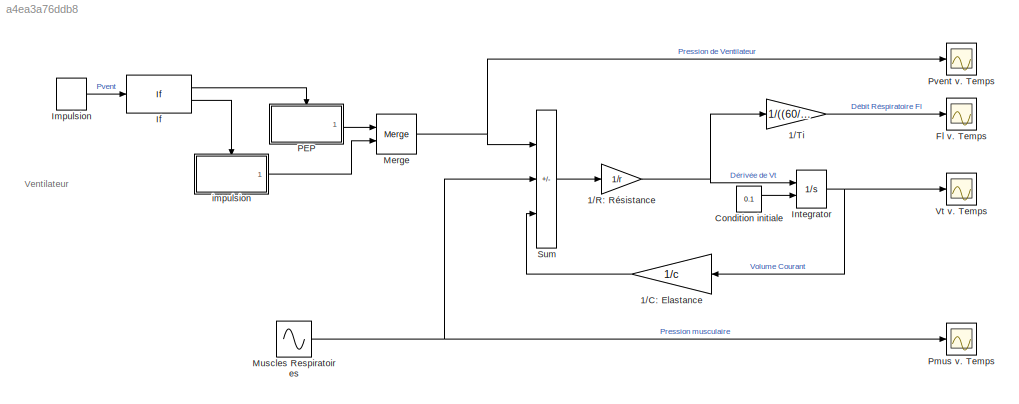
MODEL slx_a4ea3a76ddb8
KIND model
CONFIG AbsTol = auto
CONFIG EnableMultiTasking = off
CONFIG FixedStep = auto
CONFIG MaxStep = auto
CONFIG MinStep = auto
CONFIG RelTol = 1e-3
CONFIG SampleTimeConstraint = Unconstrained
CONFIG SolverName = VariableStepAuto
CONFIG StartTime = 0.0
CONFIG StopTime = 12
BLOCK [Gain] 1//C: Elastance
  Gain = 1/c
BLOCK [Gain] 1//R: Résistance
  Gain = 1/r
BLOCK [Gain] 1//Ti
  Gain = 1/((60/p)*1/(1+e))
BLOCK [Constant] Condition initiale
  Value = 0.1
BLOCK [Scope] Fl v. Temps
  Floating = off
  NumInputPorts = 1
  Ports = [1]
  ScopeSpecificationString = Simulink.scopes.TimeScopeBlockCfg('CurrentConfiguration', extmgr.ConfigurationSet(extmgr.Configuration('Core','General UI',true,'FigureColor',[1 1 1]),extmgr.Configuration('Core','Source UI',true),extmgr.Configuration('Sources','WiredSimulink',true,'DataLoggingVariableName','FL','DataLogging',true,'DataLoggingSaveFormat','Array'),extmgr.Configuration('Visuals','Time Domain',true,'SerializedDisplay...<+1764ch>
BLOCK [If] If
  IfExpression = u1 == 0
  Ports = [1, 2]
BLOCK [DiscretePulseGenerator] Impulsion
  Amplitude = a
  Period = 60/p
  Ports = [0, 1]
  PulseType = Time based
  PulseWidth = d
BLOCK [Integrator] Integrator
  InitialConditionSource = external
  Ports = [2, 1]
BLOCK [Merge] Merge
  Ports = [2, 1]
BLOCK [Sin] Muscles Respiratoires
  Amplitude = f
  Ports = [0, 1]
  SampleTime = 0.01
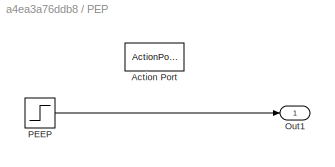
BLOCK [SubSystem] PEP
  Ports = [0, 1, 0, 0, 0, 0, 0, 1]
  RequestExecContextInheritance = off
  TreatAsAtomicUnit = on
BLOCK [ActionPort] PEP/Action Port
  ActionPortLabel = if(u1 == 0)
  InitializeStates = reset
BLOCK [Outport] PEP/Out1
BLOCK [Step] PEP/PEEP
  After = b
  SampleTime = 0
  Time = 0
BLOCK [Scope] Pmus v. Temps
  Floating = off
  NumInputPorts = 1
  Ports = [1]
  ScopeSpecificationString = Simulink.scopes.TimeScopeBlockCfg('CurrentConfiguration', extmgr.ConfigurationSet(extmgr.Configuration('Core','General UI',true,'FigureColor',[1 1 1]),extmgr.Configuration('Core','Source UI',true),extmgr.Configuration('Sources','WiredSimulink',true,'DataLoggingVariableName','PM','DataLogging',true,'DataLoggingSaveFormat','Array'),extmgr.Configuration('Visuals','Time Domain',true,'SerializedDisplay...<+1861ch>
BLOCK [Scope] Pvent v. Temps 
  Floating = off
  NumInputPorts = 1
  Ports = [1]
  ScopeSpecificationString = Simulink.scopes.TimeScopeBlockCfg('CurrentConfiguration', extmgr.ConfigurationSet(extmgr.Configuration('Core','General UI',true,'FigureColor',[1 1 1]),extmgr.Configuration('Core','Source UI',true),extmgr.Configuration('Sources','WiredSimulink',true,'DataLoggingVariableName','PV','DataLogging',true,'DataLoggingSaveFormat','Array'),extmgr.Configuration('Visuals','Time Domain',true,'SerializedDisplay...<+1737ch>
BLOCK [Sum] Sum
  IconShape = rectangular
  Inputs = +--
  Ports = [3, 1]
BLOCK [Scope] Vt v. Temps
  Floating = off
  NumInputPorts = 1
  Ports = [1]
  ScopeSpecificationString = Simulink.scopes.TimeScopeBlockCfg('CurrentConfiguration', extmgr.ConfigurationSet(extmgr.Configuration('Core','General UI',true,'FigureColor',[1 1 1]),extmgr.Configuration('Core','Source UI',true),extmgr.Configuration('Sources','WiredSimulink',true,'DataLogging',true,'DataLoggingVariableName','VT','DataLoggingSaveFormat','Array'),extmgr.Configuration('Visuals','Time Domain',true,'SerializedDisplay...<+1720ch>
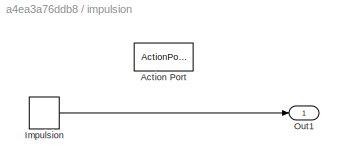
BLOCK [SubSystem] impulsion
  Ports = [0, 1, 0, 0, 0, 0, 0, 1]
  RequestExecContextInheritance = off
  TreatAsAtomicUnit = on
BLOCK [ActionPort] impulsion/Action Port
  ActionPortLabel = else
  InitializeStates = reset
BLOCK [DiscretePulseGenerator] impulsion/Impulsion
  Amplitude = a
  Period = 60/p
  Ports = [1, 1]
  PulseType = Time based
  PulseWidth = d
  TimeSource = Use external signal
BLOCK [Outport] impulsion/Out1
ANNOTATION (root): Ventilateur
LINE 1//C: Elastance:1 -> Sum:3
NET 1//R: Résistance:1 -> 1//Ti:1, Integrator:1
LINE 1//Ti:1 -> Fl v. Temps:1
LINE Condition initiale:1 -> Integrator:2
LINE If:1 -> PEP:ifaction
LINE If:2 -> impulsion:ifaction
LINE Impulsion:1 -> If:1
NET Integrator:1 -> 1//C: Elastance:1, Vt v. Temps:1
NET Merge:1 -> Pvent v. Temps :1, Sum:1
NET Muscles Respiratoires:1 -> Pmus v. Temps:1, Sum:2
LINE PEP/PEEP:1 -> PEP/Out1:1
LINE PEP:1 -> Merge:1
LINE Sum:1 -> 1//R: Résistance:1
LINE impulsion/Impulsion:1 -> impulsion/Out1:1
LINE impulsion:1 -> Merge:2
note: NET lines group one-source signal fan-out (src -> all destinations, sorted); 1:1 wires keep LINE
